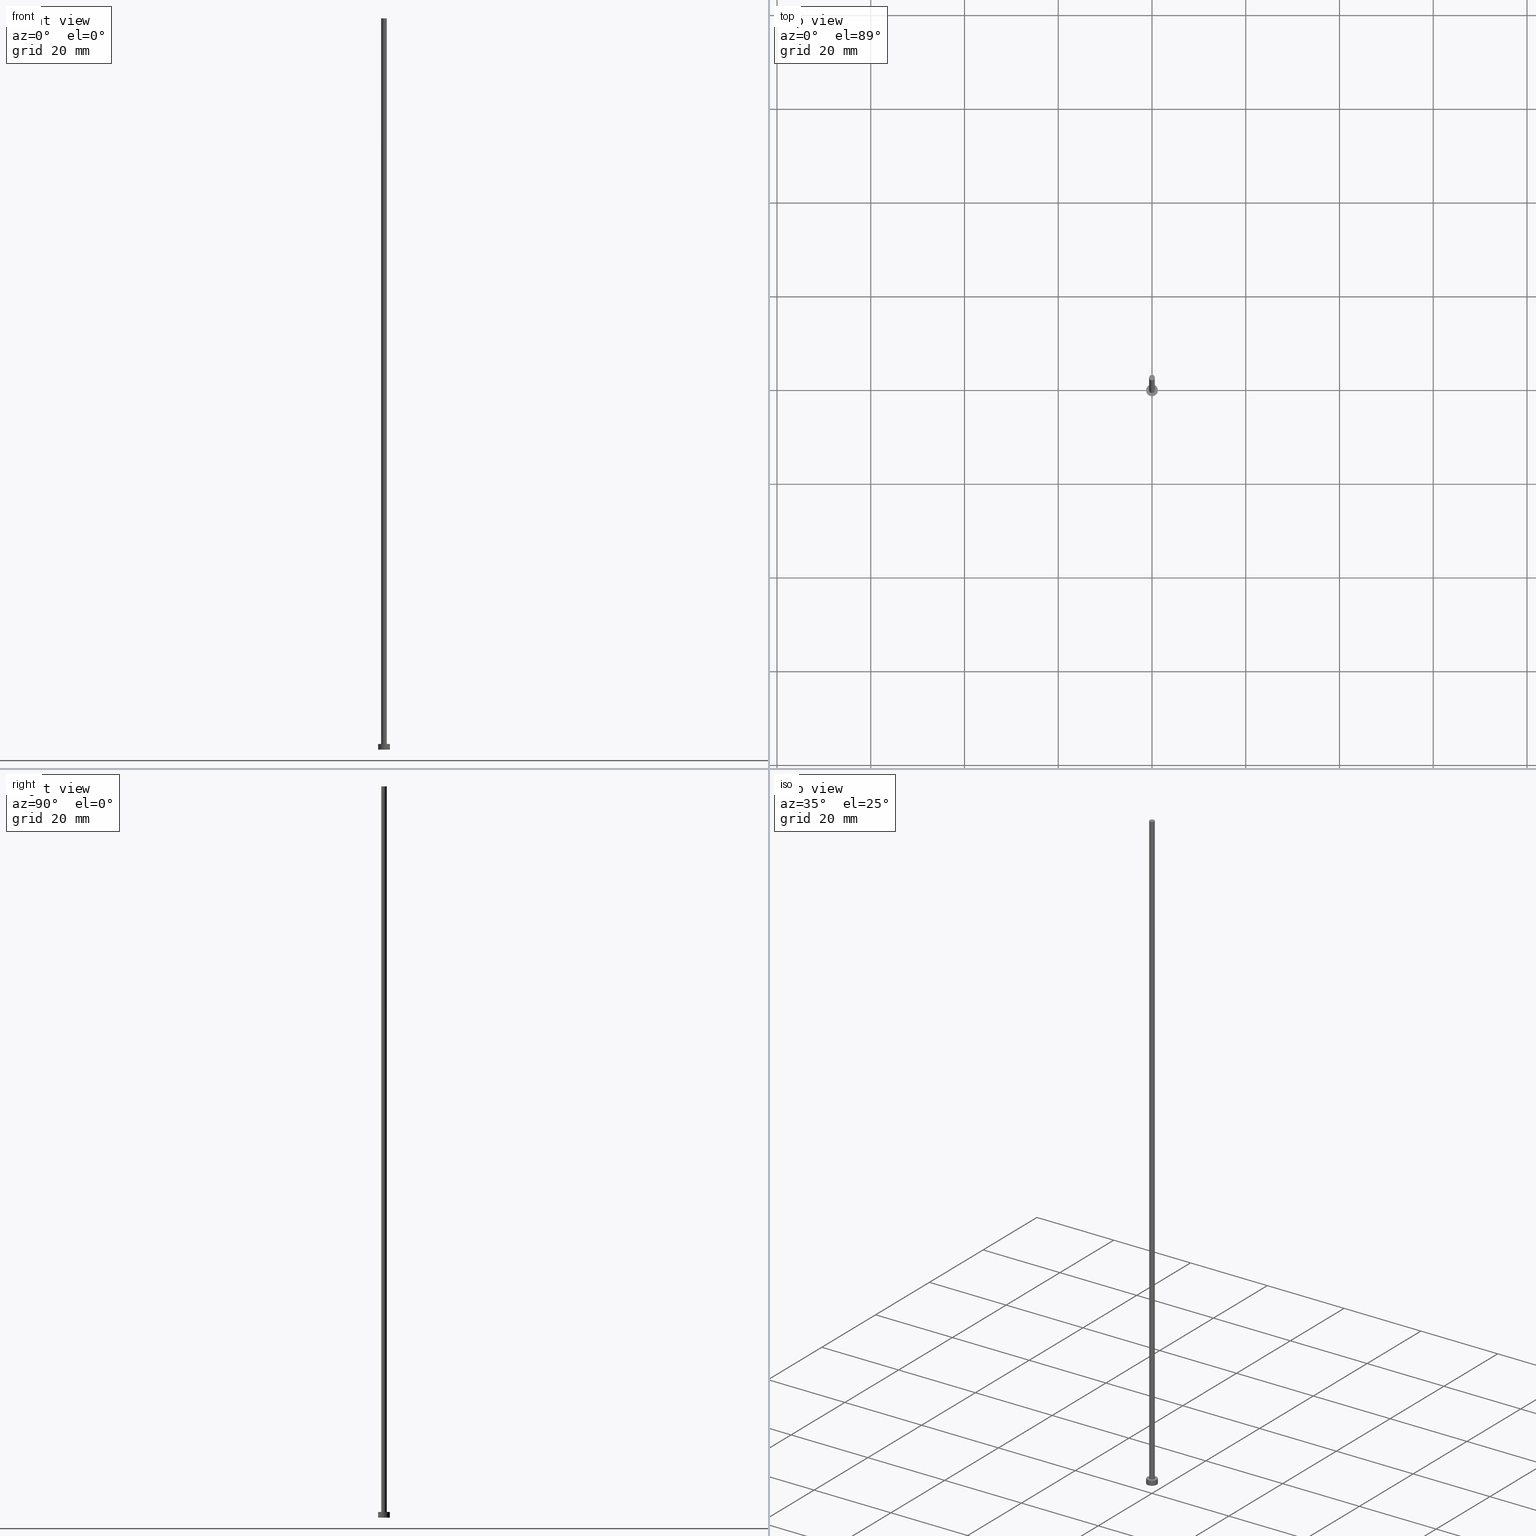
[diagram: canonical four-view strip — front | top / right | iso, engineering-drawing reading convention]
A machine part, canonical four-view strip (front | top / right | iso — engineering-drawing reading convention). The complete STEP part file that produces these views, byte-faithful:
ISO-10303-21;
HEADER;
FILE_DESCRIPTION (( 'STEP AP203' ),
    '1' );
FILE_NAME ('f97e.STEP',
    '2023-03-08T10:54:12',
    ( '' ),
    ( '' ),
    'SwSTEP 2.0',
    'SolidWorks 2019',
    '' );
FILE_SCHEMA (( 'CONFIG_CONTROL_DESIGN' ));
ENDSEC;

DATA;
#1 = CARTESIAN_POINT ( 'NONE',  ( 0.000000000000000000, 0.000000000000000000, 1.199999999999999956 ) ) ;
#2 = FACE_OUTER_BOUND ( 'NONE', #87, .T. ) ;
#3 = CYLINDRICAL_SURFACE ( 'NONE', #105, 1.250000000000000000 ) ;
#4 = PRODUCT ( 'f97e', 'f97e', '', ( #34 ) ) ;
#5 = CARTESIAN_POINT ( 'NONE',  ( 1.250000000000000000, 1.530808498934191571E-16, 1.199999999999999956 ) ) ;
#6 = PLANE ( 'NONE',  #84 ) ;
#7 = APPROVAL_ROLE ( '' ) ;
#8 = APPROVAL ( #39, 'NEUR�EN�' ) ;
#9 = PERSON_AND_ORGANIZATION_ROLE ( 'creator' ) ;
#10 = ORIENTED_EDGE ( 'NONE', *, *, #232, .T. ) ;
#11 = PERSON_AND_ORGANIZATION ( #58, #38 ) ;
#12 = EDGE_CURVE ( 'NONE', #36, #244, #230, .T. ) ;
#13 = CIRCLE ( 'NONE', #190, 1.250000000000000000 ) ;
#14 = CARTESIAN_POINT ( 'NONE',  ( -1.250000000000000000, 0.000000000000000000, 0.000000000000000000 ) ) ;
#15 = VERTEX_POINT ( 'NONE', #152 ) ;
#16 = PERSON_AND_ORGANIZATION_ROLE ( 'classification_officer' ) ;
#17 = SHAPE_DEFINITION_REPRESENTATION ( #236, #211 ) ;
#18 = EDGE_CURVE ( 'NONE', #26, #127, #145, .T. ) ;
#19 = CARTESIAN_POINT ( 'NONE',  ( 0.000000000000000000, 0.000000000000000000, 156.0000000000000284 ) ) ;
#20 = CARTESIAN_POINT ( 'NONE',  ( 0.000000000000000000, 0.000000000000000000, 156.0000000000000284 ) ) ;
#21 = DIRECTION ( 'NONE',  ( -0.000000000000000000, -0.000000000000000000, -1.000000000000000000 ) ) ;
#22 = ADVANCED_FACE ( 'NONE', ( #70 ), #75, .T. ) ;
#23 = AXIS2_PLACEMENT_3D ( 'NONE', #183, #117, #255 ) ;
#24 = FACE_OUTER_BOUND ( 'NONE', #73, .T. ) ;
#25 = PERSON_AND_ORGANIZATION ( #58, #38 ) ;
#26 = VERTEX_POINT ( 'NONE', #133 ) ;
#27 = APPROVAL ( #225, 'NEUR�EN�' ) ;
#28 = DIRECTION ( 'NONE',  ( -0.000000000000000000, -0.000000000000000000, -1.000000000000000000 ) ) ;
#29 = CIRCLE ( 'NONE', #208, 0.5999999999999999778 ) ;
#30 = APPROVAL_DATE_TIME ( #246, #216 ) ;
#31 = ORIENTED_EDGE ( 'NONE', *, *, #163, .T. ) ;
#32 = DATE_AND_TIME ( #199, #116 ) ;
#33 = CC_DESIGN_PERSON_AND_ORGANIZATION_ASSIGNMENT ( #25, #16, ( #47 ) ) ;
#34 = MECHANICAL_CONTEXT ( 'NONE', #62, 'mechanical' ) ;
#35 = VERTEX_POINT ( 'NONE', #184 ) ;
#36 = VERTEX_POINT ( 'NONE', #14 ) ;
#37 = DATE_AND_TIME ( #252, #172 ) ;
#38 = ORGANIZATION ( 'NEUR�EN�', 'NEUR�EN�', '' ) ;
#39 = APPROVAL_STATUS ( 'not_yet_approved' ) ;
#40 = FACE_OUTER_BOUND ( 'NONE', #162, .T. ) ;
#41 = CARTESIAN_POINT ( 'NONE',  ( 0.000000000000000000, 0.000000000000000000, 1.199999999999999956 ) ) ;
#42 = DIRECTION ( 'NONE',  ( 1.000000000000000000, 0.000000000000000000, 0.000000000000000000 ) ) ;
#43 = DIRECTION ( 'NONE',  ( -1.000000000000000000, 0.000000000000000000, 0.000000000000000000 ) ) ;
#44 = CLOSED_SHELL ( 'NONE', ( #187, #71, #123, #101, #228, #22, #125 ) ) ;
#45 = APPROVAL_ROLE ( '' ) ;
#46 = ORIENTED_EDGE ( 'NONE', *, *, #154, .T. ) ;
#47 = SECURITY_CLASSIFICATION ( '', '', #49 ) ;
#48 = COORDINATED_UNIVERSAL_TIME_OFFSET ( 1, 0, .AHEAD. ) ;
#49 = SECURITY_CLASSIFICATION_LEVEL ( 'unclassified' ) ;
#50 = EDGE_LOOP ( 'NONE', ( #168, #207 ) ) ;
#51 = PRODUCT_DEFINITION_FORMATION_WITH_SPECIFIED_SOURCE ( 'LIBOVOLN�', '', #4, .NOT_KNOWN. ) ;
#52 = COORDINATED_UNIVERSAL_TIME_OFFSET ( 1, 0, .AHEAD. ) ;
#53 = DIRECTION ( 'NONE',  ( 1.000000000000000000, 0.000000000000000000, 0.000000000000000000 ) ) ;
#54 = ORIENTED_EDGE ( 'NONE', *, *, #120, .T. ) ;
#55 = AXIS2_PLACEMENT_3D ( 'NONE', #153, #91, #209 ) ;
#56 = EDGE_CURVE ( 'NONE', #15, #104, #158, .T. ) ;
#57 = DIRECTION ( 'NONE',  ( -0.000000000000000000, -0.000000000000000000, -1.000000000000000000 ) ) ;
#58 = PERSON ( 'NEUR�EN�', 'NEUR�EN�', 'NEUR�EN�', ('NEUR�EN�'), ('NEUR�EN�'), ('NEUR�EN�') ) ;
#59 = DIRECTION ( 'NONE',  ( 0.000000000000000000, 0.000000000000000000, 1.000000000000000000 ) ) ;
#60 =( GEOMETRIC_REPRESENTATION_CONTEXT ( 3 ) GLOBAL_UNCERTAINTY_ASSIGNED_CONTEXT ( ( #224 ) ) GLOBAL_UNIT_ASSIGNED_CONTEXT ( ( #83, #103, #242 ) ) REPRESENTATION_CONTEXT ( 'NONE', 'WORKASPACE' ) );
#61 = CARTESIAN_POINT ( 'NONE',  ( -1.250000000000000000, 0.000000000000000000, 1.199999999999999956 ) ) ;
#62 = APPLICATION_CONTEXT ( 'configuration controlled 3d designs of mechanical parts and assemblies' ) ;
#63 = CC_DESIGN_DATE_AND_TIME_ASSIGNMENT ( #143, #222, ( #74 ) ) ;
#64 = VECTOR ( 'NONE', #138, 1000.000000000000000 ) ;
#65 = APPLICATION_PROTOCOL_DEFINITION ( 'international standard', 'config_control_design', 1994, #62 ) ;
#66 = COORDINATED_UNIVERSAL_TIME_OFFSET ( 1, 0, .AHEAD. ) ;
#67 = DIRECTION ( 'NONE',  ( 0.000000000000000000, 0.000000000000000000, 1.000000000000000000 ) ) ;
#68 = APPROVAL_PERSON_ORGANIZATION ( #231, #8, #188 ) ;
#69 = ORIENTED_EDGE ( 'NONE', *, *, #12, .T. ) ;
#70 = FACE_OUTER_BOUND ( 'NONE', #179, .T. ) ;
#71 = ADVANCED_FACE ( 'NONE', ( #206 ), #205, .T. ) ;
#72 = CIRCLE ( 'NONE', #181, 1.250000000000000000 ) ;
#73 = EDGE_LOOP ( 'NONE', ( #245, #200, #114, #69 ) ) ;
#74 = PRODUCT_DEFINITION ( 'NEZN�M�', '', #51, #235 ) ;
#75 = CYLINDRICAL_SURFACE ( 'NONE', #241, 0.5999999999999999778 ) ;
#76 = DIRECTION ( 'NONE',  ( -0.000000000000000000, -0.000000000000000000, -1.000000000000000000 ) ) ;
#77 = VECTOR ( 'NONE', #57, 1000.000000000000000 ) ;
#78 = CARTESIAN_POINT ( 'NONE',  ( 0.000000000000000000, 0.000000000000000000, 0.000000000000000000 ) ) ;
#79 = CC_DESIGN_PERSON_AND_ORGANIZATION_ASSIGNMENT ( #88, #146, ( #51 ) ) ;
#80 = PLANE ( 'NONE',  #251 ) ;
#81 = VECTOR ( 'NONE', #238, 1000.000000000000000 ) ;
#82 = LINE ( 'NONE', #5, #77 ) ;
#83 =( LENGTH_UNIT ( ) NAMED_UNIT ( * ) SI_UNIT ( .MILLI., .METRE. ) );
#84 = AXIS2_PLACEMENT_3D ( 'NONE', #99, #155, #121 ) ;
#85 = EDGE_CURVE ( 'NONE', #244, #36, #13, .T. ) ;
#86 = FACE_OUTER_BOUND ( 'NONE', #165, .T. ) ;
#87 = EDGE_LOOP ( 'NONE', ( #94, #248 ) ) ;
#88 = PERSON_AND_ORGANIZATION ( #58, #38 ) ;
#89 = CIRCLE ( 'NONE', #204, 1.250000000000000000 ) ;
#90 = LINE ( 'NONE', #196, #217 ) ;
#91 = DIRECTION ( 'NONE',  ( -0.000000000000000000, -0.000000000000000000, -1.000000000000000000 ) ) ;
#92 = LOCAL_TIME ( 11, 54, 12.00000000000000000, #66 ) ;
#93 = ORIENTED_EDGE ( 'NONE', *, *, #197, .F. ) ;
#94 = ORIENTED_EDGE ( 'NONE', *, *, #56, .T. ) ;
#95 = LINE ( 'NONE', #157, #81 ) ;
#96 = AXIS2_PLACEMENT_3D ( 'NONE', #201, #67, #144 ) ;
#97 = FACE_OUTER_BOUND ( 'NONE', #109, .T. ) ;
#98 = DIRECTION ( 'NONE',  ( -1.000000000000000000, 0.000000000000000000, 0.000000000000000000 ) ) ;
#99 = CARTESIAN_POINT ( 'NONE',  ( 0.000000000000000000, 0.000000000000000000, 1.199999999999999956 ) ) ;
#100 = LOCAL_TIME ( 11, 54, 12.00000000000000000, #113 ) ;
#101 = ADVANCED_FACE ( 'NONE', ( #171, #97 ), #6, .T. ) ;
#102 = DIRECTION ( 'NONE',  ( 0.000000000000000000, 0.000000000000000000, 1.000000000000000000 ) ) ;
#103 =( NAMED_UNIT ( * ) PLANE_ANGLE_UNIT ( ) SI_UNIT ( $, .RADIAN. ) );
#104 = VERTEX_POINT ( 'NONE', #141 ) ;
#105 = AXIS2_PLACEMENT_3D ( 'NONE', #41, #191, #43 ) ;
#106 = CARTESIAN_POINT ( 'NONE',  ( 0.000000000000000000, 0.000000000000000000, 0.000000000000000000 ) ) ;
#107 = ORIENTED_EDGE ( 'NONE', *, *, #140, .T. ) ;
#108 = CALENDAR_DATE ( 2023, 8, 3 ) ;
#109 = EDGE_LOOP ( 'NONE', ( #54, #46 ) ) ;
#110 = CC_DESIGN_PERSON_AND_ORGANIZATION_ASSIGNMENT ( #124, #195, ( #4 ) ) ;
#111 = ORIENTED_EDGE ( 'NONE', *, *, #147, .T. ) ;
#112 = APPLICATION_CONTEXT ( 'configuration controlled 3d designs of mechanical parts and assemblies' ) ;
#113 = COORDINATED_UNIVERSAL_TIME_OFFSET ( 1, 0, .AHEAD. ) ;
#114 = ORIENTED_EDGE ( 'NONE', *, *, #197, .T. ) ;
#115 = PRODUCT_RELATED_PRODUCT_CATEGORY ( 'detail', '', ( #4 ) ) ;
#116 = LOCAL_TIME ( 11, 54, 12.00000000000000000, #48 ) ;
#117 = DIRECTION ( 'NONE',  ( 0.000000000000000000, 0.000000000000000000, 1.000000000000000000 ) ) ;
#118 = ORIENTED_EDGE ( 'NONE', *, *, #232, .F. ) ;
#119 = LINE ( 'NONE', #159, #64 ) ;
#120 = EDGE_CURVE ( 'NONE', #202, #35, #72, .T. ) ;
#121 = DIRECTION ( 'NONE',  ( 1.000000000000000000, 0.000000000000000000, -0.000000000000000000 ) ) ;
#122 = CYLINDRICAL_SURFACE ( 'NONE', #167, 0.5999999999999999778 ) ;
#123 = ADVANCED_FACE ( 'NONE', ( #24 ), #3, .T. ) ;
#124 = PERSON_AND_ORGANIZATION ( #58, #38 ) ;
#125 = ADVANCED_FACE ( 'NONE', ( #2 ), #80, .T. ) ;
#126 = PLANE ( 'NONE',  #223 ) ;
#127 = VERTEX_POINT ( 'NONE', #214 ) ;
#128 = APPLICATION_PROTOCOL_DEFINITION ( 'international standard', 'config_control_design', 1994, #112 ) ;
#129 = ORIENTED_EDGE ( 'NONE', *, *, #140, .F. ) ;
#130 = DIRECTION ( 'NONE',  ( 1.000000000000000000, 0.000000000000000000, 0.000000000000000000 ) ) ;
#131 = CARTESIAN_POINT ( 'NONE',  ( 0.000000000000000000, 0.000000000000000000, 156.0000000000000284 ) ) ;
#132 = CALENDAR_DATE ( 2023, 8, 3 ) ;
#133 = CARTESIAN_POINT ( 'NONE',  ( 0.5999999999999999778, 7.347880794884117764E-17, 1.199999999999999956 ) ) ;
#134 = APPROVAL_DATE_TIME ( #182, #8 ) ;
#135 = CARTESIAN_POINT ( 'NONE',  ( 0.000000000000000000, 0.000000000000000000, 156.0000000000000284 ) ) ;
#136 = DIRECTION ( 'NONE',  ( 0.000000000000000000, 0.000000000000000000, 1.000000000000000000 ) ) ;
#137 = DIRECTION ( 'NONE',  ( 1.000000000000000000, 0.000000000000000000, 0.000000000000000000 ) ) ;
#138 = DIRECTION ( 'NONE',  ( -0.000000000000000000, -0.000000000000000000, -1.000000000000000000 ) ) ;
#139 = CIRCLE ( 'NONE', #174, 0.5999999999999999778 ) ;
#140 = EDGE_CURVE ( 'NONE', #15, #127, #119, .T. ) ;
#141 = CARTESIAN_POINT ( 'NONE',  ( 0.5999999999999999778, 7.347880794884117764E-17, 156.0000000000000284 ) ) ;
#142 = APPROVAL_DATE_TIME ( #32, #27 ) ;
#143 = DATE_AND_TIME ( #108, #92 ) ;
#144 = DIRECTION ( 'NONE',  ( 1.000000000000000000, 0.000000000000000000, 0.000000000000000000 ) ) ;
#145 = CIRCLE ( 'NONE', #169, 0.5999999999999999778 ) ;
#146 = PERSON_AND_ORGANIZATION_ROLE ( 'design_supplier' ) ;
#147 = EDGE_CURVE ( 'NONE', #35, #244, #82, .T. ) ;
#148 = ORIENTED_EDGE ( 'NONE', *, *, #18, .T. ) ;
#149 = DIRECTION ( 'NONE',  ( -1.000000000000000000, 0.000000000000000000, 0.000000000000000000 ) ) ;
#150 = CC_DESIGN_SECURITY_CLASSIFICATION ( #47, ( #51 ) ) ;
#151 = CC_DESIGN_DATE_AND_TIME_ASSIGNMENT ( #37, #185, ( #47 ) ) ;
#152 = CARTESIAN_POINT ( 'NONE',  ( -0.5999999999999999778, 0.000000000000000000, 156.0000000000000284 ) ) ;
#153 = CARTESIAN_POINT ( 'NONE',  ( 0.000000000000000000, 0.000000000000000000, 1.199999999999999956 ) ) ;
#154 = EDGE_CURVE ( 'NONE', #35, #202, #89, .T. ) ;
#155 = DIRECTION ( 'NONE',  ( 0.000000000000000000, 0.000000000000000000, 1.000000000000000000 ) ) ;
#156 = CC_DESIGN_PERSON_AND_ORGANIZATION_ASSIGNMENT ( #161, #9, ( #74 ) ) ;
#157 = CARTESIAN_POINT ( 'NONE',  ( -1.250000000000000000, 0.000000000000000000, 1.199999999999999956 ) ) ;
#158 = CIRCLE ( 'NONE', #186, 0.5999999999999999778 ) ;
#159 = CARTESIAN_POINT ( 'NONE',  ( -0.5999999999999999778, 0.000000000000000000, 156.0000000000000284 ) ) ;
#160 = LOCAL_TIME ( 11, 54, 12.00000000000000000, #180 ) ;
#161 = PERSON_AND_ORGANIZATION ( #58, #38 ) ;
#162 = EDGE_LOOP ( 'NONE', ( #227, #10, #148, #129 ) ) ;
#163 = EDGE_CURVE ( 'NONE', #127, #26, #139, .T. ) ;
#164 = APPROVAL_PERSON_ORGANIZATION ( #240, #216, #7 ) ;
#165 = EDGE_LOOP ( 'NONE', ( #254, #203 ) ) ;
#166 = EDGE_CURVE ( 'NONE', #104, #15, #29, .T. ) ;
#167 = AXIS2_PLACEMENT_3D ( 'NONE', #19, #21, #98 ) ;
#168 = ORIENTED_EDGE ( 'NONE', *, *, #163, .F. ) ;
#169 = AXIS2_PLACEMENT_3D ( 'NONE', #249, #233, #53 ) ;
#170 = CARTESIAN_POINT ( 'NONE',  ( 0.000000000000000000, 0.000000000000000000, 1.199999999999999956 ) ) ;
#171 = FACE_BOUND ( 'NONE', #50, .T. ) ;
#172 = LOCAL_TIME ( 11, 54, 12.00000000000000000, #52 ) ;
#173 = DIRECTION ( 'NONE',  ( 1.000000000000000000, 0.000000000000000000, 0.000000000000000000 ) ) ;
#174 = AXIS2_PLACEMENT_3D ( 'NONE', #170, #210, #42 ) ;
#175 = CC_DESIGN_PERSON_AND_ORGANIZATION_ASSIGNMENT ( #11, #218, ( #51 ) ) ;
#176 = DIRECTION ( 'NONE',  ( 1.000000000000000000, 0.000000000000000000, -0.000000000000000000 ) ) ;
#177 = APPROVAL_STATUS ( 'not_yet_approved' ) ;
#178 = CARTESIAN_POINT ( 'NONE',  ( 1.250000000000000000, 1.530808498934191571E-16, 0.000000000000000000 ) ) ;
#179 = EDGE_LOOP ( 'NONE', ( #118, #221, #107, #31 ) ) ;
#180 = COORDINATED_UNIVERSAL_TIME_OFFSET ( 1, 0, .AHEAD. ) ;
#181 = AXIS2_PLACEMENT_3D ( 'NONE', #1, #212, #137 ) ;
#182 = DATE_AND_TIME ( #132, #100 ) ;
#183 = CARTESIAN_POINT ( 'NONE',  ( 0.000000000000000000, 0.000000000000000000, 0.000000000000000000 ) ) ;
#184 = CARTESIAN_POINT ( 'NONE',  ( 1.250000000000000000, 1.530808498934191571E-16, 1.199999999999999956 ) ) ;
#185 = DATE_TIME_ROLE ( 'classification_date' ) ;
#186 = AXIS2_PLACEMENT_3D ( 'NONE', #131, #229, #130 ) ;
#187 = ADVANCED_FACE ( 'NONE', ( #40 ), #122, .T. ) ;
#188 = APPROVAL_ROLE ( '' ) ;
#189 = DIRECTION ( 'NONE',  ( 1.000000000000000000, 0.000000000000000000, 0.000000000000000000 ) ) ;
#190 = AXIS2_PLACEMENT_3D ( 'NONE', #78, #215, #173 ) ;
#191 = DIRECTION ( 'NONE',  ( -0.000000000000000000, -0.000000000000000000, -1.000000000000000000 ) ) ;
#192 = DIRECTION ( 'NONE',  ( 1.000000000000000000, 0.000000000000000000, 0.000000000000000000 ) ) ;
#193 = DIRECTION ( 'NONE',  ( 1.000000000000000000, 0.000000000000000000, -0.000000000000000000 ) ) ;
#194 = CALENDAR_DATE ( 2023, 8, 3 ) ;
#195 = PERSON_AND_ORGANIZATION_ROLE ( 'design_owner' ) ;
#196 = CARTESIAN_POINT ( 'NONE',  ( 0.5999999999999999778, 7.347880794884117764E-17, 156.0000000000000284 ) ) ;
#197 = EDGE_CURVE ( 'NONE', #202, #36, #95, .T. ) ;
#198 = CC_DESIGN_APPROVAL ( #216, ( #74 ) ) ;
#199 = CALENDAR_DATE ( 2023, 8, 3 ) ;
#200 = ORIENTED_EDGE ( 'NONE', *, *, #120, .F. ) ;
#201 = CARTESIAN_POINT ( 'NONE',  ( 0.000000000000000000, 0.000000000000000000, 0.000000000000000000 ) ) ;
#202 = VERTEX_POINT ( 'NONE', #61 ) ;
#203 = ORIENTED_EDGE ( 'NONE', *, *, #85, .F. ) ;
#204 = AXIS2_PLACEMENT_3D ( 'NONE', #213, #136, #189 ) ;
#205 = CYLINDRICAL_SURFACE ( 'NONE', #55, 1.250000000000000000 ) ;
#206 = FACE_OUTER_BOUND ( 'NONE', #226, .T. ) ;
#207 = ORIENTED_EDGE ( 'NONE', *, *, #18, .F. ) ;
#208 = AXIS2_PLACEMENT_3D ( 'NONE', #239, #102, #192 ) ;
#209 = DIRECTION ( 'NONE',  ( -1.000000000000000000, 0.000000000000000000, 0.000000000000000000 ) ) ;
#210 = DIRECTION ( 'NONE',  ( 0.000000000000000000, 0.000000000000000000, 1.000000000000000000 ) ) ;
#211 = ADVANCED_BREP_SHAPE_REPRESENTATION ( 'f97e', ( #243, #96 ), #60 ) ;
#212 = DIRECTION ( 'NONE',  ( 0.000000000000000000, 0.000000000000000000, 1.000000000000000000 ) ) ;
#213 = CARTESIAN_POINT ( 'NONE',  ( 0.000000000000000000, 0.000000000000000000, 1.199999999999999956 ) ) ;
#214 = CARTESIAN_POINT ( 'NONE',  ( -0.5999999999999999778, 0.000000000000000000, 1.199999999999999956 ) ) ;
#215 = DIRECTION ( 'NONE',  ( 0.000000000000000000, 0.000000000000000000, 1.000000000000000000 ) ) ;
#216 = APPROVAL ( #177, 'NEUR�EN�' ) ;
#217 = VECTOR ( 'NONE', #28, 1000.000000000000000 ) ;
#218 = PERSON_AND_ORGANIZATION_ROLE ( 'creator' ) ;
#219 = DIRECTION ( 'NONE',  ( 0.000000000000000000, 0.000000000000000000, 1.000000000000000000 ) ) ;
#220 = PERSON_AND_ORGANIZATION ( #58, #38 ) ;
#221 = ORIENTED_EDGE ( 'NONE', *, *, #56, .F. ) ;
#222 = DATE_TIME_ROLE ( 'creation_date' ) ;
#223 = AXIS2_PLACEMENT_3D ( 'NONE', #106, #219, #176 ) ;
#224 = UNCERTAINTY_MEASURE_WITH_UNIT (LENGTH_MEASURE( 1.000000000000000082E-05 ), #83, 'distance_accuracy_value', 'NONE');
#225 = APPROVAL_STATUS ( 'not_yet_approved' ) ;
#226 = EDGE_LOOP ( 'NONE', ( #253, #111, #250, #93 ) ) ;
#227 = ORIENTED_EDGE ( 'NONE', *, *, #166, .F. ) ;
#228 = ADVANCED_FACE ( 'NONE', ( #86 ), #126, .F. ) ;
#229 = DIRECTION ( 'NONE',  ( 0.000000000000000000, 0.000000000000000000, 1.000000000000000000 ) ) ;
#230 = CIRCLE ( 'NONE', #23, 1.250000000000000000 ) ;
#231 = PERSON_AND_ORGANIZATION ( #58, #38 ) ;
#232 = EDGE_CURVE ( 'NONE', #104, #26, #90, .T. ) ;
#233 = DIRECTION ( 'NONE',  ( 0.000000000000000000, 0.000000000000000000, 1.000000000000000000 ) ) ;
#234 = CC_DESIGN_APPROVAL ( #27, ( #51 ) ) ;
#235 = DESIGN_CONTEXT ( 'detailed design', #112, 'design' ) ;
#236 = PRODUCT_DEFINITION_SHAPE ( 'NONE', 'NONE',  #74 ) ;
#237 = APPROVAL_PERSON_ORGANIZATION ( #220, #27, #45 ) ;
#238 = DIRECTION ( 'NONE',  ( -0.000000000000000000, -0.000000000000000000, -1.000000000000000000 ) ) ;
#239 = CARTESIAN_POINT ( 'NONE',  ( 0.000000000000000000, 0.000000000000000000, 156.0000000000000284 ) ) ;
#240 = PERSON_AND_ORGANIZATION ( #58, #38 ) ;
#241 = AXIS2_PLACEMENT_3D ( 'NONE', #135, #76, #149 ) ;
#242 =( NAMED_UNIT ( * ) SI_UNIT ( $, .STERADIAN. ) SOLID_ANGLE_UNIT ( ) );
#243 = MANIFOLD_SOLID_BREP ( 'P�idat vysunut�m3', #44 ) ;
#244 = VERTEX_POINT ( 'NONE', #178 ) ;
#245 = ORIENTED_EDGE ( 'NONE', *, *, #147, .F. ) ;
#246 = DATE_AND_TIME ( #194, #160 ) ;
#247 = CC_DESIGN_APPROVAL ( #8, ( #47 ) ) ;
#248 = ORIENTED_EDGE ( 'NONE', *, *, #166, .T. ) ;
#249 = CARTESIAN_POINT ( 'NONE',  ( 0.000000000000000000, 0.000000000000000000, 1.199999999999999956 ) ) ;
#250 = ORIENTED_EDGE ( 'NONE', *, *, #85, .T. ) ;
#251 = AXIS2_PLACEMENT_3D ( 'NONE', #20, #59, #193 ) ;
#252 = CALENDAR_DATE ( 2023, 8, 3 ) ;
#253 = ORIENTED_EDGE ( 'NONE', *, *, #154, .F. ) ;
#254 = ORIENTED_EDGE ( 'NONE', *, *, #12, .F. ) ;
#255 = DIRECTION ( 'NONE',  ( 1.000000000000000000, 0.000000000000000000, 0.000000000000000000 ) ) ;
ENDSEC;
END-ISO-10303-21;
